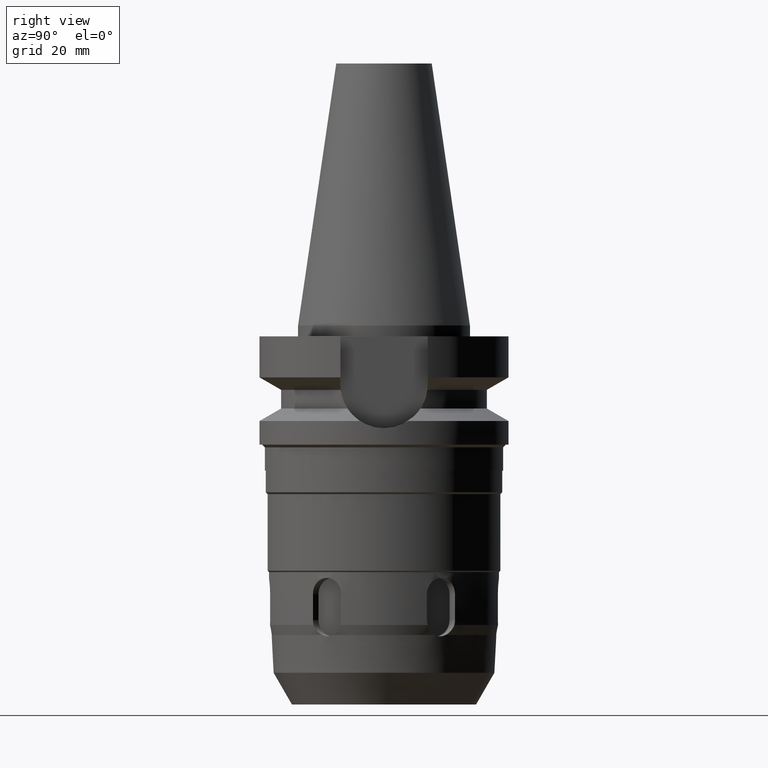
[diagram: clean part render]
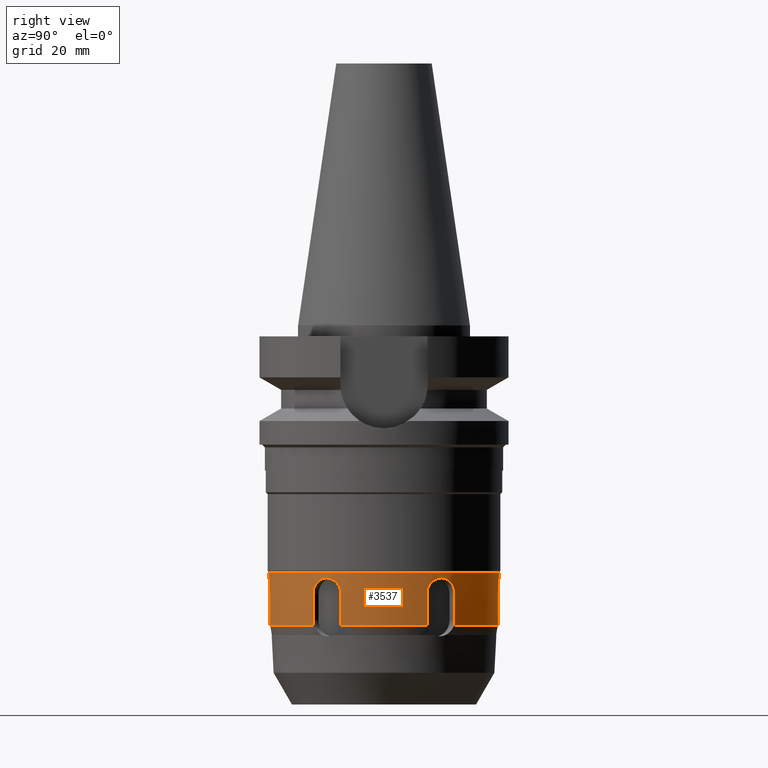
[diagram: same view with one face highlighted and labeled with its STEP entity id]
A machine part, right view. The second image highlights one B-rep face of the part: STEP entity #3537.
In plain terms, the highlighted cylindrical surface (partial cylindrical patch) has radius 21.25 mm, axis along (0, 0, -1).
Its self-contained STEP definition (entity closure, byte-faithful):
#806=CARTESIAN_POINT('',(0.E0,0.E0,-4.555E1));
#807=DIRECTION('',(0.E0,0.E0,-1.E0));
#808=DIRECTION('',(0.E0,1.E0,0.E0));
#809=AXIS2_PLACEMENT_3D('',#806,#807,#808);
#920=CARTESIAN_POINT('',(4.817666999773E-14,2.125E1,-4.66E1));
#925=DIRECTION('',(-2.106993938400E-14,0.E0,-1.E0));
#926=VECTOR('',#925,1.05E0);
#927=CARTESIAN_POINT('',(0.E0,-2.125E1,-4.555E1));
#928=LINE('',#927,#926);
#1247=CARTESIAN_POINT('',(2.861835282155E0,-2.105642461190E1,
-5.529994046673E1));
#1252=CARTESIAN_POINT('',(0.E0,0.E0,-5.53E1));
#1253=DIRECTION('',(0.E0,0.E0,1.E0));
#1254=DIRECTION('',(1.346736224493E-1,-9.908900117654E-1,0.E0));
#1255=AXIS2_PLACEMENT_3D('',#1252,#1253,#1254);
#1271=DIRECTION('',(-2.972011096357E-7,-1.237125091205E-7,9.999999999999E-1));
#1272=VECTOR('',#1271,4.800000000206E0);
#1273=CARTESIAN_POINT('',(3.000001426565E0,-2.103716889259E1,
-5.440000000021E1));
#1274=LINE('',#1273,#1272);
#1278=CARTESIAN_POINT('',(3.E0,-2.103716948641E1,-4.96E1));
#1279=CARTESIAN_POINT('',(3.E0,-2.103716948641E1,-4.933421519836E1));
#1280=CARTESIAN_POINT('',(2.932279389407E0,-2.104699945434E1,
-4.882175936810E1));
#1281=CARTESIAN_POINT('',(2.628876115539E0,-2.108799529368E1,
-4.808325925086E1));
#1282=CARTESIAN_POINT('',(2.147092814661E0,-2.114369921362E1,
-4.745636864640E1));
#1283=CARTESIAN_POINT('',(1.520547038066E0,-2.119933219757E1,
-4.697322434452E1));
#1284=CARTESIAN_POINT('',(7.810841241228E-1,-2.124019435587E1,
-4.666828607812E1));
#1285=CARTESIAN_POINT('',(2.667891004021E-1,-2.125E1,-4.66E1));
#1286=CARTESIAN_POINT('',(-2.212343635320E-14,-2.125E1,-4.66E1));
#1291=DIRECTION('',(2.790750340867E-14,0.E0,-1.E0));
#1292=VECTOR('',#1291,1.05E0);
#1293=CARTESIAN_POINT('',(1.887379141863E-14,2.125E1,-4.555E1));
#1294=LINE('',#1293,#1292);
#1298=CARTESIAN_POINT('',(4.817666999773E-14,2.125E1,-4.66E1));
#1299=CARTESIAN_POINT('',(2.655905181932E-1,2.125E1,-4.66E1));
#1300=CARTESIAN_POINT('',(7.780470340293E-1,2.124028374967E1,
-4.666766907772E1));
#1301=CARTESIAN_POINT('',(1.516506238425E0,2.119961985453E1,-4.697098492057E1));
#1302=CARTESIAN_POINT('',(2.143567747034E0,2.114406716711E1,-4.745282298069E1));
#1303=CARTESIAN_POINT('',(2.626822495198E0,2.108826187941E1,-4.807948769151E1));
#1304=CARTESIAN_POINT('',(2.931777548819E0,2.104707316218E1,-4.881918868422E1));
#1305=CARTESIAN_POINT('',(3.E0,2.103716948641E1,-4.933321909582E1));
#1306=CARTESIAN_POINT('',(3.E0,2.103716948641E1,-4.96E1));
#1311=DIRECTION('',(8.169025284203E-8,-2.974001425400E-6,-9.999999999956E-1));
#1312=VECTOR('',#1311,4.800000003142E0);
#1313=CARTESIAN_POINT('',(3.E0,2.103716948641E1,-4.96E1));
#1314=LINE('',#1313,#1312);
#1318=CARTESIAN_POINT('',(3.000000392113E0,2.103715521120E1,-5.440000000312E1));
#1319=CARTESIAN_POINT('',(3.000000392113E0,2.103715521120E1,-5.450194895272E1));
#1320=CARTESIAN_POINT('',(2.989668500771E0,2.103865345099E1,-5.470457107454E1));
#1321=CARTESIAN_POINT('',(2.943320900681E0,2.104520143706E1,-5.500658111735E1));
#1322=CARTESIAN_POINT('',(2.892372453533E0,2.105225999565E1,-5.520283074607E1));
#1323=CARTESIAN_POINT('',(2.861814870705E0,2.105641312114E1,-5.529999827911E1));
#1328=CARTESIAN_POINT('',(1.680448098584E1,1.300663436164E1,-5.529994046608E1));
#1329=CARTESIAN_POINT('',(1.678560935353E1,1.303101642421E1,-5.520277232901E1));
#1330=CARTESIAN_POINT('',(1.675402199968E1,1.307157926572E1,-5.500660738783E1));
#1331=CARTESIAN_POINT('',(1.672517301989E1,1.310844969162E1,-5.470456264898E1));
#1332=CARTESIAN_POINT('',(1.671872197126E1,1.311666189320E1,-5.450194866380E1));
#1333=CARTESIAN_POINT('',(1.671872197126E1,1.311666189320E1,-5.440000000021E1));
#1338=DIRECTION('',(2.557701428320E-7,-1.955514716739E-7,9.999999999999E-1));
#1339=VECTOR('',#1338,4.800000000206E0);
#1340=CARTESIAN_POINT('',(1.671872197126E1,1.311666189320E1,-5.440000000021E1));
#1341=LINE('',#1340,#1339);
#1345=CARTESIAN_POINT('',(1.671872319895E1,1.311666095456E1,-4.96E1));
#1346=CARTESIAN_POINT('',(1.671872319895E1,1.311666095456E1,-4.933379791509E1));
#1347=CARTESIAN_POINT('',(1.676123621623E1,1.306275115282E1,-4.882074715582E1));
#1348=CARTESIAN_POINT('',(1.694867451517E1,1.282018111179E1,-4.808221549083E1));
#1349=CARTESIAN_POINT('',(1.723784024842E1,1.243072233061E1,-4.745572118466E1));
#1350=CARTESIAN_POINT('',(1.759913287065E1,1.191612741768E1,-4.697301523596E1));
#1351=CARTESIAN_POINT('',(1.800403209641E1,1.129648766409E1,-4.666829134713E1));
#1352=CARTESIAN_POINT('',(1.826964573644E1,1.085604583782E1,-4.659999793132E1));
#1353=CARTESIAN_POINT('',(1.840304004243E1,1.062500012240E1,-4.659999793132E1));
#1358=CARTESIAN_POINT('',(1.840304004243E1,1.062500012240E1,-4.659999793132E1));
#1359=CARTESIAN_POINT('',(1.853574864373E1,1.039514208234E1,-4.659999793132E1));
#1360=CARTESIAN_POINT('',(1.878343210619E1,9.946733057836E0,-4.666758012658E1));
#1361=CARTESIAN_POINT('',(1.911733819136E1,9.287141210848E0,-4.697058583883E1));
#1362=CARTESIAN_POINT('',(1.938279321588E1,8.716297995527E0,-4.745212205222E1));
#1363=CARTESIAN_POINT('',(1.957620161717E1,8.269667572975E0,-4.807865539085E1));
#1364=CARTESIAN_POINT('',(1.969313994092E1,7.984665750793E0,-4.881855155359E1));
#1365=CARTESIAN_POINT('',(1.971872319895E1,7.920508531851E0,-4.933296625423E1));
#1366=CARTESIAN_POINT('',(1.971872319895E1,7.920508531851E0,-4.96E1));
#1371=DIRECTION('',(-2.534703475079E-6,-1.557840073698E-6,-9.999999999956E-1));
#1372=VECTOR('',#1371,4.800000003142E0);
#1373=CARTESIAN_POINT('',(1.971872319895E1,7.920508531851E0,-4.96E1));
#1374=LINE('',#1373,#1372);
#1378=CARTESIAN_POINT('',(1.971871103237E1,7.920501054218E0,-5.440000000312E1));
#1379=CARTESIAN_POINT('',(1.971871103237E1,7.920501054218E0,-5.450194895277E1));
#1380=CARTESIAN_POINT('',(1.971484260139E1,7.930197852505E0,-5.470457107468E1));
#1381=CARTESIAN_POINT('',(1.969733952301E1,7.973610046019E0,-5.500658111750E1));
#1382=CARTESIAN_POINT('',(1.967797819010E1,8.021261975761E0,-5.520283074626E1));
#1383=CARTESIAN_POINT('',(1.966629611086E1,8.049802181526E0,-5.529999827928E1));
#1388=CARTESIAN_POINT('',(1.966631626823E1,-8.049790249418E0,
-5.529994046295E1));
#1389=CARTESIAN_POINT('',(1.967799593754E1,-8.021255905433E0,
-5.520277232577E1));
#1390=CARTESIAN_POINT('',(1.969733071141E1,-7.973619034713E0,
-5.500660738934E1));
#1391=CARTESIAN_POINT('',(1.971483694715E1,-7.930199872019E0,
-5.470456264855E1));
#1392=CARTESIAN_POINT('',(1.971872339800E1,-7.920506999311E0,
-5.450194866380E1));
#1393=CARTESIAN_POINT('',(1.971872339800E1,-7.920506999311E0,
-5.440000000021E1));
#1398=DIRECTION('',(-4.146747537762E-8,-3.192792102787E-7,9.999999999999E-1));
#1399=VECTOR('',#1398,4.800000000206E0);
#1400=CARTESIAN_POINT('',(1.971872339800E1,-7.920506999311E0,
-5.440000000021E1));
#1401=LINE('',#1400,#1399);
#1405=CARTESIAN_POINT('',(1.971872319895E1,-7.920508531851E0,-4.96E1));
#1406=CARTESIAN_POINT('',(1.971872319895E1,-7.920508531851E0,
-4.933379654980E1));
#1407=CARTESIAN_POINT('',(1.969329227982E1,-7.984281245964E0,
-4.882074311802E1));
#1408=CARTESIAN_POINT('',(1.957693772674E1,-8.267897029114E0,
-4.808220561417E1));
#1409=CARTESIAN_POINT('',(1.938423734344E1,-8.713055830320E0,
-4.745570966560E1));
#1410=CARTESIAN_POINT('',(1.911922648340E1,-9.283250787245E0,
-4.697300458184E1));
#1411=CARTESIAN_POINT('',(1.878506180084E1,-9.943704071279E0,
-4.666829320930E1));
#1412=CARTESIAN_POINT('',(1.853643479029E1,-1.039395359463E1,
-4.659999809687E1));
#1413=CARTESIAN_POINT('',(1.840304002207E1,-1.062500011065E1,
-4.659999809687E1));
#1418=CARTESIAN_POINT('',(1.840304002207E1,-1.062500011065E1,
-4.659999809687E1));
#1419=CARTESIAN_POINT('',(1.827032624819E1,-1.085486710986E1,
-4.659999809687E1));
#1420=CARTESIAN_POINT('',(1.800582618436E1,-1.129358450161E1,
-4.666758538949E1));
#1421=CARTESIAN_POINT('',(1.760155230671E1,-1.191255496475E1,
-4.697060314071E1));
#1422=CARTESIAN_POINT('',(1.723991995348E1,-1.242785897732E1,
-4.745214360935E1));
#1423=CARTESIAN_POINT('',(1.694983783063E1,-1.281866086234E1,
-4.807867218450E1));
#1424=CARTESIAN_POINT('',(1.676149284800E1,-1.306242722072E1,
-4.881855784925E1));
#1425=CARTESIAN_POINT('',(1.671872319895E1,-1.311666095456E1,
-4.933296826257E1));
#1426=CARTESIAN_POINT('',(1.671872319895E1,-1.311666095456E1,-4.96E1));
#1431=DIRECTION('',(-2.616480819181E-6,1.416197596044E-6,-9.999999999956E-1));
#1432=VECTOR('',#1431,4.800000003142E0);
#1433=CARTESIAN_POINT('',(1.671872319895E1,-1.311666095456E1,-4.96E1));
#1434=LINE('',#1433,#1432);
#1438=CARTESIAN_POINT('',(1.671871063984E1,-1.311665415681E1,
-5.440000000312E1));
#1439=CARTESIAN_POINT('',(1.671871063984E1,-1.311665415681E1,
-5.450194895277E1));
#1440=CARTESIAN_POINT('',(1.672517409800E1,-1.310845559817E1,
-5.470457107469E1));
#1441=CARTESIAN_POINT('',(1.675401862123E1,-1.307159139089E1,
-5.500658111747E1));
#1442=CARTESIAN_POINT('',(1.678560573648E1,-1.303099801984E1,
-5.520283074633E1));
#1443=CARTESIAN_POINT('',(1.680448124008E1,-1.300661093956E1,
-5.529999827935E1));
#1448=CARTESIAN_POINT('',(2.861835282155E0,-2.105642461190E1,
-5.529994046673E1));
#1449=CARTESIAN_POINT('',(2.892386583913E0,-2.105227233018E1,
-5.520277232984E1));
#1450=CARTESIAN_POINT('',(2.943308712558E0,-2.104519830008E1,
-5.500660738769E1));
#1451=CARTESIAN_POINT('',(2.989663926495E0,-2.103864956380E1,
-5.470456264908E1));
#1452=CARTESIAN_POINT('',(3.000001426565E0,-2.103716889259E1,
-5.450194866380E1));
#1453=CARTESIAN_POINT('',(3.000001426565E0,-2.103716889259E1,
-5.440000000021E1));
#1552=CARTESIAN_POINT('',(1.680448098584E1,1.300663436164E1,-5.529994046608E1));
#1557=CARTESIAN_POINT('',(0.E0,0.E0,-5.53E1));
#1558=DIRECTION('',(0.E0,0.E0,1.E0));
#1559=DIRECTION('',(7.907991113522E-1,6.120757841024E-1,0.E0));
#1560=AXIS2_PLACEMENT_3D('',#1557,#1558,#1559);
#1596=CARTESIAN_POINT('',(1.966631626823E1,-8.049790249418E0,
-5.529994046295E1));
#1601=CARTESIAN_POINT('',(0.E0,0.E0,-5.53E1));
#1602=DIRECTION('',(0.E0,0.E0,1.E0));
#1603=DIRECTION('',(9.254727337502E-1,-3.788142276697E-1,0.E0));
#1604=AXIS2_PLACEMENT_3D('',#1601,#1602,#1603);
#2416=VERTEX_POINT('',#1552);
#2417=CARTESIAN_POINT('',(2.861807780034E0,2.105641366022E1,-5.53E1));
#2418=VERTEX_POINT('',#2417);
#2421=VERTEX_POINT('',#1596);
#2422=CARTESIAN_POINT('',(1.966629303252E1,8.049808591472E0,-5.53E1));
#2423=VERTEX_POINT('',#2422);
#2426=VERTEX_POINT('',#1247);
#2427=CARTESIAN_POINT('',(1.680448525208E1,-1.300660506869E1,-5.53E1));
#2428=VERTEX_POINT('',#2427);
#2437=VERTEX_POINT('',#1378);
#2444=CARTESIAN_POINT('',(1.671872197126E1,1.311666189320E1,-5.440000000021E1));
#2445=VERTEX_POINT('',#2444);
#2454=CARTESIAN_POINT('',(3.000001426565E0,-2.103716889259E1,
-5.440000000021E1));
#2455=VERTEX_POINT('',#2454);
#2463=VERTEX_POINT('',#920);
#2464=CARTESIAN_POINT('',(1.887379141863E-14,2.125E1,-4.555E1));
#2465=VERTEX_POINT('',#2464);
#2466=CARTESIAN_POINT('',(0.E0,-2.125E1,-4.555E1));
#2467=VERTEX_POINT('',#2466);
#2468=CARTESIAN_POINT('',(-2.212343635320E-14,-2.125E1,-4.66E1));
#2469=VERTEX_POINT('',#2468);
#2484=VERTEX_POINT('',#1318);
#2491=CARTESIAN_POINT('',(3.E0,-2.103716948641E1,-4.96E1));
#2492=VERTEX_POINT('',#2491);
#2493=VERTEX_POINT('',#1306);
#2494=CARTESIAN_POINT('',(1.671872319895E1,1.311666095456E1,-4.96E1));
#2495=VERTEX_POINT('',#2494);
#2496=VERTEX_POINT('',#1358);
#2497=VERTEX_POINT('',#1366);
#2498=VERTEX_POINT('',#1393);
#2499=CARTESIAN_POINT('',(1.971872319895E1,-7.920508531851E0,-4.96E1));
#2500=VERTEX_POINT('',#2499);
#2501=VERTEX_POINT('',#1418);
#2502=VERTEX_POINT('',#1426);
#2503=CARTESIAN_POINT('',(1.671871063984E1,-1.311665415681E1,
-5.440000000312E1));
#2504=VERTEX_POINT('',#2503);
#3487=CARTESIAN_POINT('',(0.E0,1.889874940444E-14,5.432E1));
#3488=DIRECTION('',(0.E0,0.E0,-1.E0));
#3489=DIRECTION('',(0.E0,-1.E0,0.E0));
#3490=AXIS2_PLACEMENT_3D('',#3487,#3488,#3489);
#3491=CYLINDRICAL_SURFACE('',#3490,2.125E1);
#3493=ORIENTED_EDGE('',*,*,#3492,.T.);
#3495=ORIENTED_EDGE('',*,*,#3494,.T.);
#3496=ORIENTED_EDGE('',*,*,#3294,.F.);
#3497=ORIENTED_EDGE('',*,*,#3247,.F.);
#3498=ORIENTED_EDGE('',*,*,#3291,.T.);
#3500=ORIENTED_EDGE('',*,*,#3499,.T.);
#3502=ORIENTED_EDGE('',*,*,#3501,.T.);
#3504=ORIENTED_EDGE('',*,*,#3503,.T.);
#3506=ORIENTED_EDGE('',*,*,#3505,.F.);
#3508=ORIENTED_EDGE('',*,*,#3507,.T.);
#3510=ORIENTED_EDGE('',*,*,#3509,.T.);
#3512=ORIENTED_EDGE('',*,*,#3511,.T.);
#3514=ORIENTED_EDGE('',*,*,#3513,.T.);
#3516=ORIENTED_EDGE('',*,*,#3515,.T.);
#3518=ORIENTED_EDGE('',*,*,#3517,.T.);
#3520=ORIENTED_EDGE('',*,*,#3519,.F.);
#3522=ORIENTED_EDGE('',*,*,#3521,.T.);
#3524=ORIENTED_EDGE('',*,*,#3523,.T.);
#3526=ORIENTED_EDGE('',*,*,#3525,.T.);
#3528=ORIENTED_EDGE('',*,*,#3527,.T.);
#3530=ORIENTED_EDGE('',*,*,#3529,.T.);
#3532=ORIENTED_EDGE('',*,*,#3531,.T.);
#3533=ORIENTED_EDGE('',*,*,#3479,.F.);
#3534=ORIENTED_EDGE('',*,*,#3435,.T.);
#3535=EDGE_LOOP('',(#3493,#3495,#3496,#3497,#3498,#3500,#3502,#3504,#3506,#3508,
#3510,#3512,#3514,#3516,#3518,#3520,#3522,#3524,#3526,#3528,#3530,#3532,#3533,
#3534));
#3536=FACE_OUTER_BOUND('',#3535,.F.);
#810=CIRCLE('',#809,2.125E1);
#1256=CIRCLE('',#1255,2.125E1);
#1287=B_SPLINE_CURVE_WITH_KNOTS('',3,(#1278,#1279,#1280,#1281,#1282,#1283,#1284,
#1285,#1286),.UNSPECIFIED.,.F.,.F.,(4,1,1,1,1,1,4),(0.E0,1.666666666667E-1,
3.333333333333E-1,5.E-1,6.666666666667E-1,8.333333333333E-1,1.E0),
.UNSPECIFIED.);
#1307=B_SPLINE_CURVE_WITH_KNOTS('',3,(#1298,#1299,#1300,#1301,#1302,#1303,#1304,
#1305,#1306),.UNSPECIFIED.,.F.,.F.,(4,1,1,1,1,1,4),(0.E0,1.666666666667E-1,
3.333333333333E-1,5.E-1,6.666666666667E-1,8.333333333333E-1,1.E0),
.UNSPECIFIED.);
#1324=B_SPLINE_CURVE_WITH_KNOTS('',3,(#1318,#1319,#1320,#1321,#1322,#1323),
.UNSPECIFIED.,.F.,.F.,(4,1,1,4),(0.E0,3.333333333333E-1,6.666666666667E-1,1.E0),
.UNSPECIFIED.);
#1334=B_SPLINE_CURVE_WITH_KNOTS('',3,(#1328,#1329,#1330,#1331,#1332,#1333),
.UNSPECIFIED.,.F.,.F.,(4,1,1,4),(0.E0,3.333333333333E-1,6.666666666667E-1,1.E0),
.UNSPECIFIED.);
#1354=B_SPLINE_CURVE_WITH_KNOTS('',3,(#1345,#1346,#1347,#1348,#1349,#1350,#1351,
#1352,#1353),.UNSPECIFIED.,.F.,.F.,(4,1,1,1,1,1,4),(0.E0,1.666666666667E-1,
3.333333333333E-1,5.E-1,6.666666666667E-1,8.333333333333E-1,1.E0),
.UNSPECIFIED.);
#1367=B_SPLINE_CURVE_WITH_KNOTS('',3,(#1358,#1359,#1360,#1361,#1362,#1363,#1364,
#1365,#1366),.UNSPECIFIED.,.F.,.F.,(4,1,1,1,1,1,4),(0.E0,1.666666666667E-1,
3.333333333333E-1,5.E-1,6.666666666667E-1,8.333333333333E-1,1.E0),
.UNSPECIFIED.);
#1384=B_SPLINE_CURVE_WITH_KNOTS('',3,(#1378,#1379,#1380,#1381,#1382,#1383),
.UNSPECIFIED.,.F.,.F.,(4,1,1,4),(0.E0,3.333333333333E-1,6.666666666667E-1,1.E0),
.UNSPECIFIED.);
#1394=B_SPLINE_CURVE_WITH_KNOTS('',3,(#1388,#1389,#1390,#1391,#1392,#1393),
.UNSPECIFIED.,.F.,.F.,(4,1,1,4),(0.E0,3.333333333333E-1,6.666666666667E-1,1.E0),
.UNSPECIFIED.);
#1414=B_SPLINE_CURVE_WITH_KNOTS('',3,(#1405,#1406,#1407,#1408,#1409,#1410,#1411,
#1412,#1413),.UNSPECIFIED.,.F.,.F.,(4,1,1,1,1,1,4),(0.E0,1.666666666667E-1,
3.333333333333E-1,5.E-1,6.666666666667E-1,8.333333333333E-1,1.E0),
.UNSPECIFIED.);
#1427=B_SPLINE_CURVE_WITH_KNOTS('',3,(#1418,#1419,#1420,#1421,#1422,#1423,#1424,
#1425,#1426),.UNSPECIFIED.,.F.,.F.,(4,1,1,1,1,1,4),(0.E0,1.666666666667E-1,
3.333333333333E-1,5.E-1,6.666666666667E-1,8.333333333333E-1,1.E0),
.UNSPECIFIED.);
#1444=B_SPLINE_CURVE_WITH_KNOTS('',3,(#1438,#1439,#1440,#1441,#1442,#1443),
.UNSPECIFIED.,.F.,.F.,(4,1,1,4),(0.E0,3.333333333333E-1,6.666666666667E-1,1.E0),
.UNSPECIFIED.);
#1454=B_SPLINE_CURVE_WITH_KNOTS('',3,(#1448,#1449,#1450,#1451,#1452,#1453),
.UNSPECIFIED.,.F.,.F.,(4,1,1,4),(0.E0,3.333333333333E-1,6.666666666667E-1,1.E0),
.UNSPECIFIED.);
#1561=CIRCLE('',#1560,2.125E1);
#1605=CIRCLE('',#1604,2.125E1);
#3247=EDGE_CURVE('',#2465,#2467,#810,.T.);
#3291=EDGE_CURVE('',#2465,#2463,#1294,.T.);
#3294=EDGE_CURVE('',#2467,#2469,#928,.T.);
#3435=EDGE_CURVE('',#2426,#2455,#1454,.T.);
#3479=EDGE_CURVE('',#2426,#2428,#1256,.T.);
#3492=EDGE_CURVE('',#2455,#2492,#1274,.T.);
#3494=EDGE_CURVE('',#2492,#2469,#1287,.T.);
#3499=EDGE_CURVE('',#2463,#2493,#1307,.T.);
#3501=EDGE_CURVE('',#2493,#2484,#1314,.T.);
#3503=EDGE_CURVE('',#2484,#2418,#1324,.T.);
#3505=EDGE_CURVE('',#2416,#2418,#1561,.T.);
#3507=EDGE_CURVE('',#2416,#2445,#1334,.T.);
#3509=EDGE_CURVE('',#2445,#2495,#1341,.T.);
#3511=EDGE_CURVE('',#2495,#2496,#1354,.T.);
#3513=EDGE_CURVE('',#2496,#2497,#1367,.T.);
#3515=EDGE_CURVE('',#2497,#2437,#1374,.T.);
#3517=EDGE_CURVE('',#2437,#2423,#1384,.T.);
#3519=EDGE_CURVE('',#2421,#2423,#1605,.T.);
#3521=EDGE_CURVE('',#2421,#2498,#1394,.T.);
#3523=EDGE_CURVE('',#2498,#2500,#1401,.T.);
#3525=EDGE_CURVE('',#2500,#2501,#1414,.T.);
#3527=EDGE_CURVE('',#2501,#2502,#1427,.T.);
#3529=EDGE_CURVE('',#2502,#2504,#1434,.T.);
#3531=EDGE_CURVE('',#2504,#2428,#1444,.T.);
#3537=ADVANCED_FACE('',(#3536),#3491,.T.);